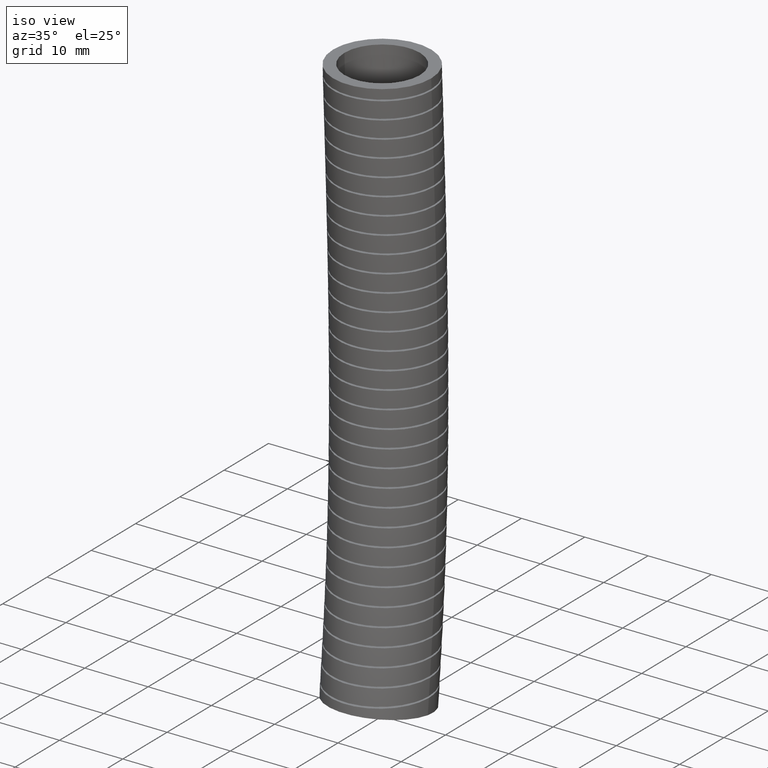
[diagram: clean part render]
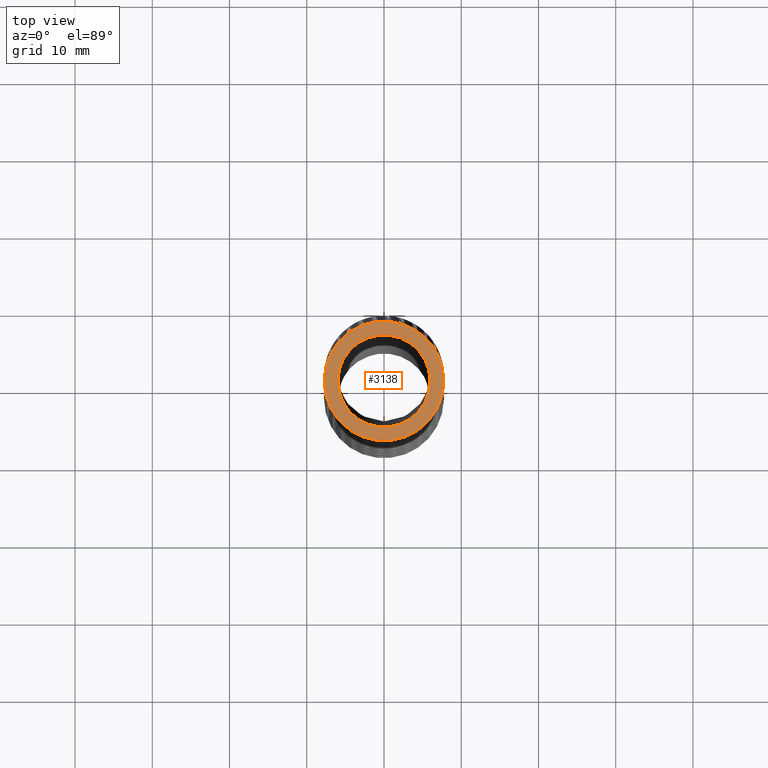
[diagram: tour spotlight — one face highlighted and labeled with its STEP entity id]
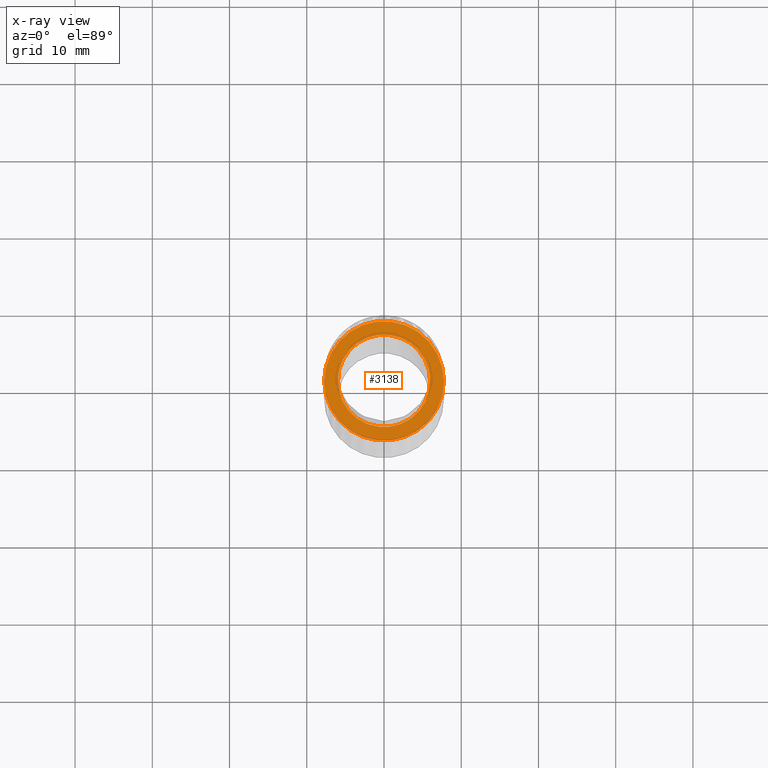
[diagram: x-ray of the same camera — body ghosted, this tour face saturated]
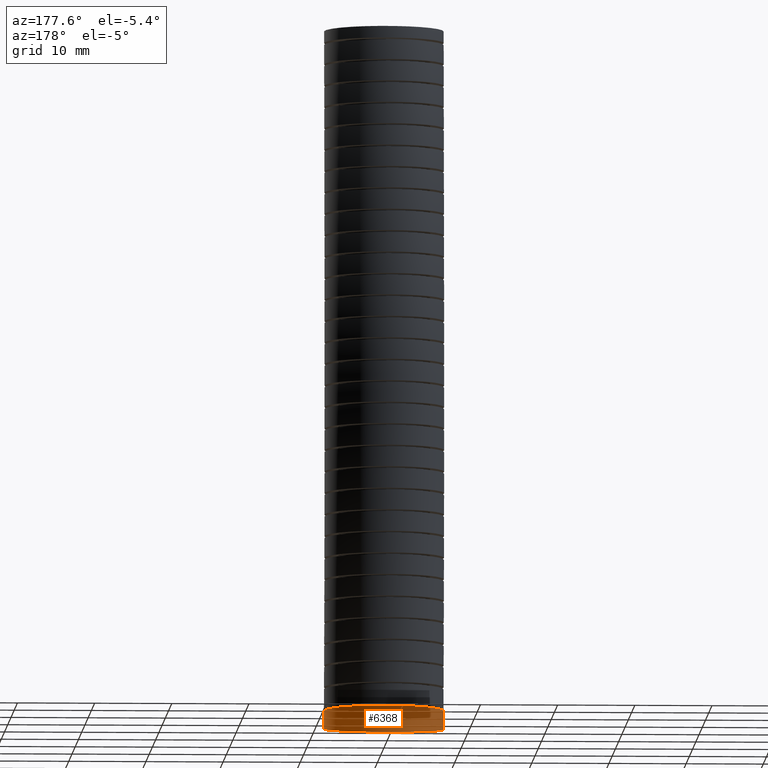
[diagram: tour spotlight — one face highlighted and labeled with its STEP entity id]
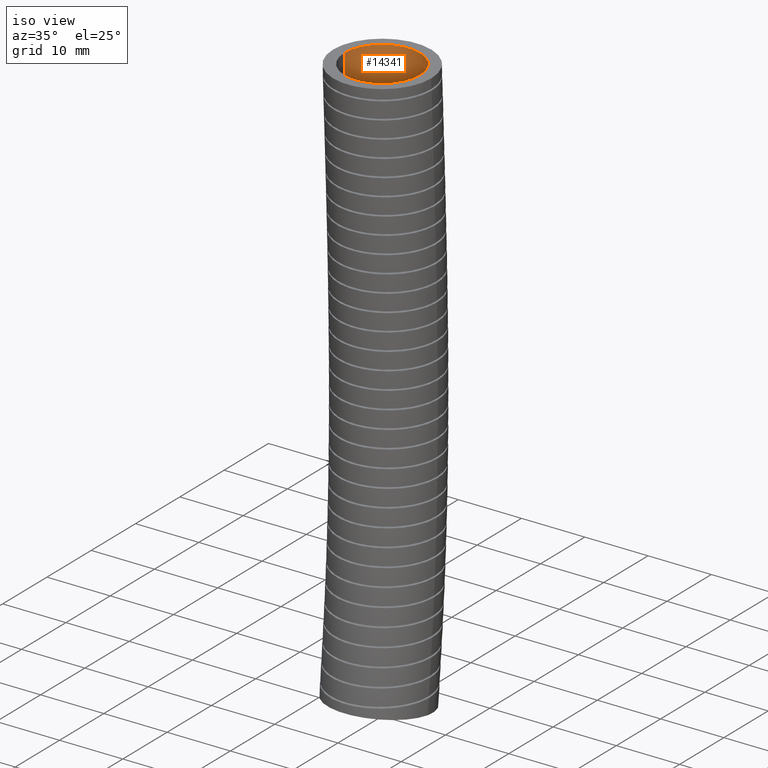
[diagram: tour spotlight — one face highlighted and labeled with its STEP entity id]
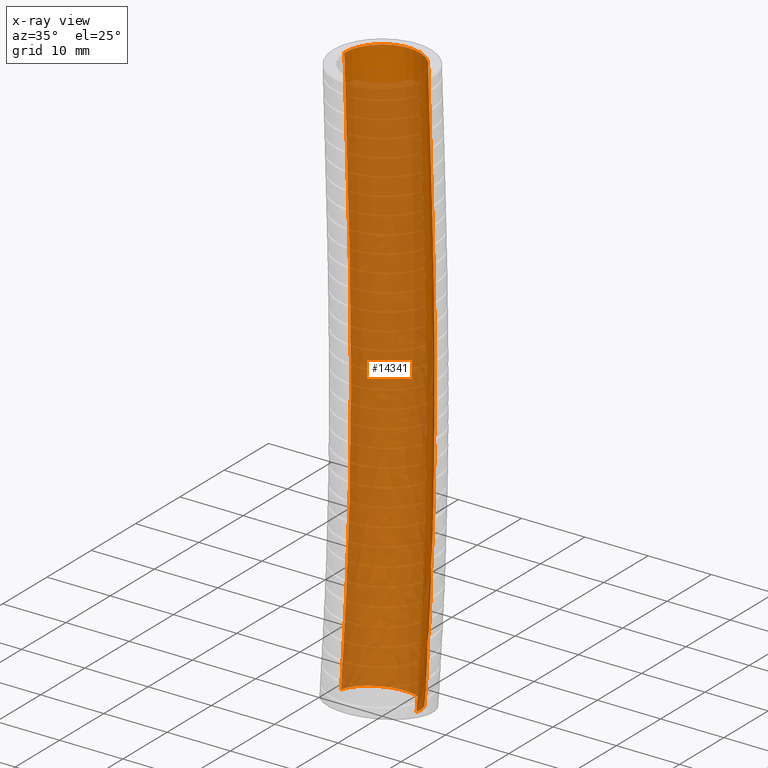
[diagram: x-ray of the same camera — body ghosted, this tour face saturated]
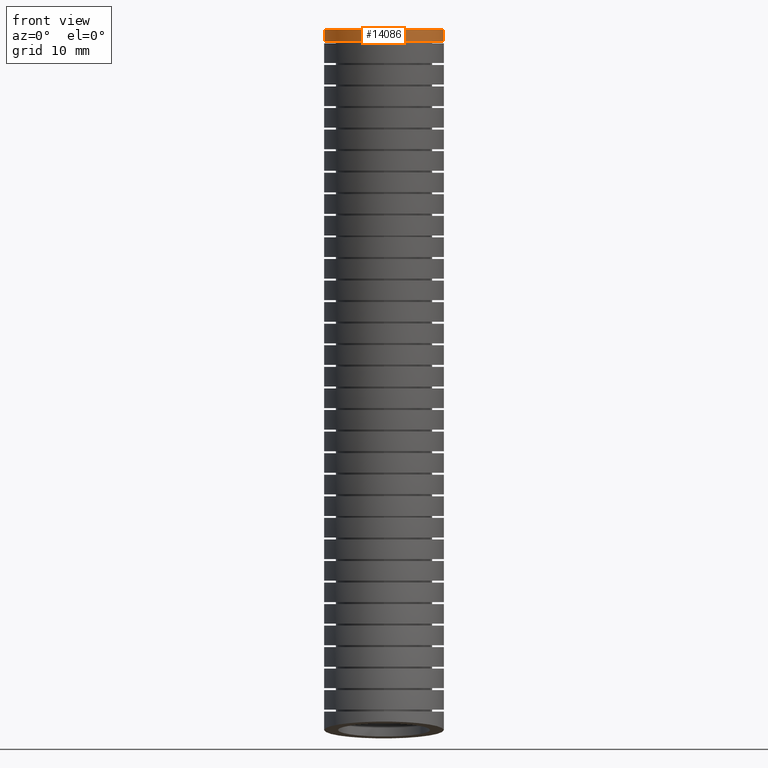
[diagram: tour spotlight — one face highlighted and labeled with its STEP entity id]
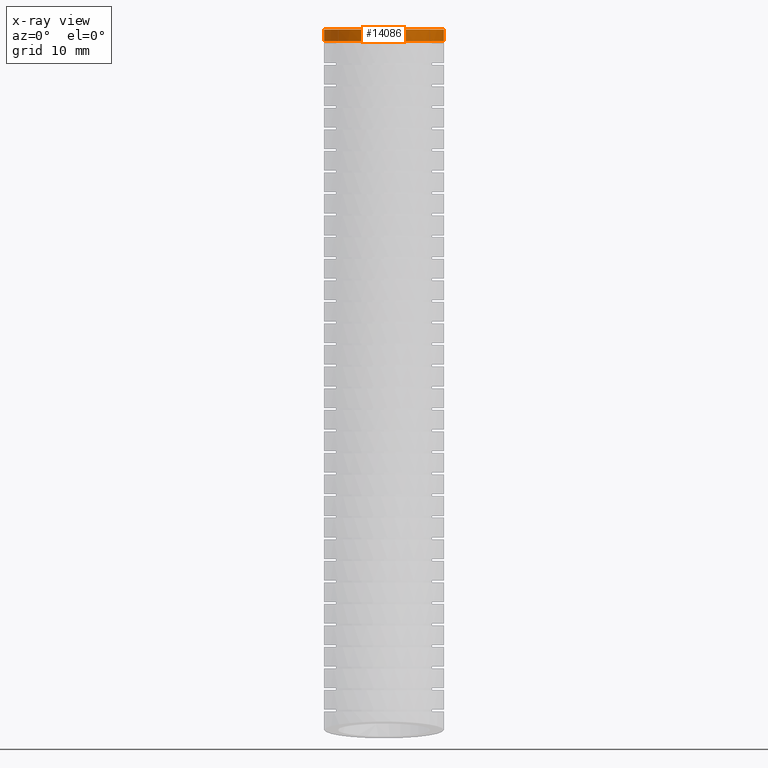
[diagram: x-ray of the same camera — body ghosted, this tour face saturated]
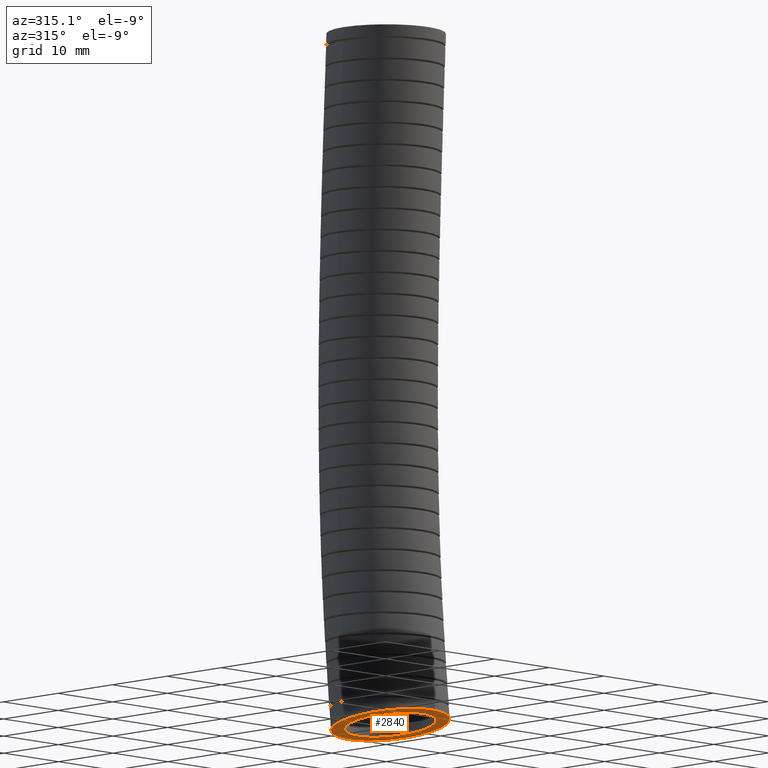
[diagram: tour spotlight — one face highlighted and labeled with its STEP entity id]
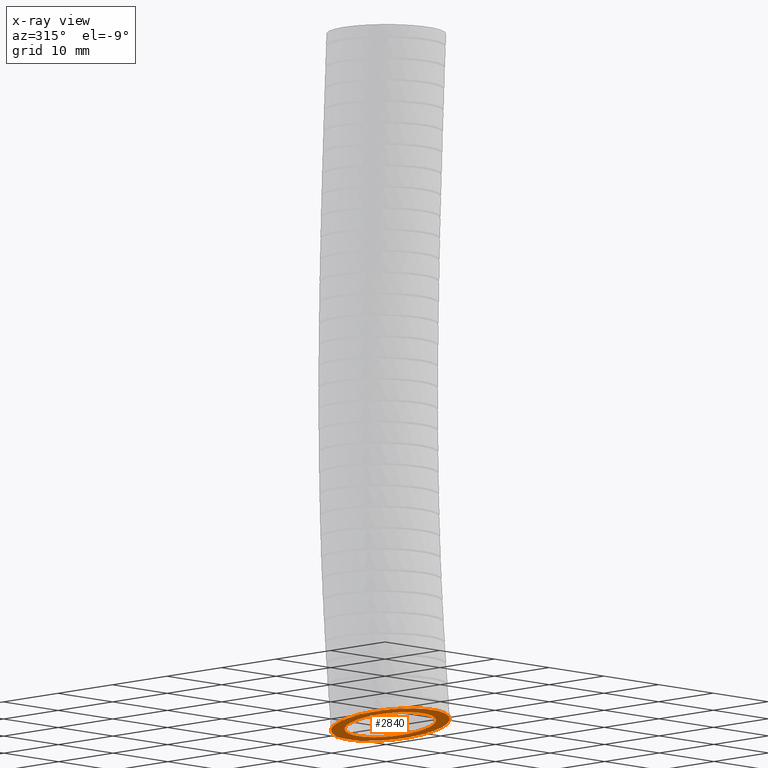
[diagram: x-ray of the same camera — body ghosted, this tour face saturated]
A machine part: a face-by-face anatomy tour. The part has 198 B-rep faces; the first image is the clean iso view, then the 5 largest visible faces are spotlighted one at a time (largest first), each with its STEP entity span.

Face 1 — top view, entity #3138. An x-ray twin of the same camera follows (body ghosted, this face saturated) — the face is partly hidden behind the body. In plain terms, the highlighted planar face has unit normal (0, 0, 1).
Definition (entity closure, byte-faithful):
#1577 = AXIS2_PLACEMENT_3D ( 'NONE', #1585, #1658, #1657 ) ;
#1578 = CIRCLE ( 'NONE', #1577, 0.2349999999999999900 ) ;
#1585 = CARTESIAN_POINT ( 'NONE',  ( 0.0000000000000000000, 0.0000000000000000000, 0.0000000000000000000 ) ) ;
#1657 = DIRECTION ( 'NONE',  ( 1.000000000000000000, 0.0000000000000000000, 0.0000000000000000000 ) ) ;
#1658 = DIRECTION ( 'NONE',  ( 0.0000000000000000000, 0.0000000000000000000, 1.000000000000000000 ) ) ;
#2020 = CARTESIAN_POINT ( 'NONE',  ( 0.2349999999999999900, 0.0000000000000000000, 0.0000000000000000000 ) ) ;
#2373 = CARTESIAN_POINT ( 'NONE',  ( 0.3050000000000000500, 0.0000000000000000000, 0.0000000000000000000 ) ) ;
#2414 = CARTESIAN_POINT ( 'NONE',  ( -0.2349999999999999900, 2.877919977996279800E-017, 0.0000000000000000000 ) ) ;
#2923 = DIRECTION ( 'NONE',  ( 1.000000000000000000, 0.0000000000000000000, 0.0000000000000000000 ) ) ;
#2924 = DIRECTION ( 'NONE',  ( 0.0000000000000000000, 0.0000000000000000000, 1.000000000000000000 ) ) ;
#2925 = CARTESIAN_POINT ( 'NONE',  ( 0.0000000000000000000, 0.0000000000000000000, 0.0000000000000000000 ) ) ;
#2926 = AXIS2_PLACEMENT_3D ( 'NONE', #2925, #2924, #2923 ) ;
#2927 = CIRCLE ( 'NONE', #2926, 0.3050000000000000500 ) ;
#2933 = CARTESIAN_POINT ( 'NONE',  ( -0.3050000000000000500, 3.735172737399427600E-017, 0.0000000000000000000 ) ) ;
#2990 = EDGE_CURVE ( 'NONE', #14079, #14364, #7224, .T. ) ;
#3029 = EDGE_LOOP ( 'NONE', ( #3117, #3118 ) ) ;
#3117 = ORIENTED_EDGE ( 'NONE', *, *, #2990, .T. ) ;
#3118 = ORIENTED_EDGE ( 'NONE', *, *, #14365, .T. ) ;
#3134 = ORIENTED_EDGE ( 'NONE', *, *, #13766, .F. ) ;
#3135 = EDGE_LOOP ( 'NONE', ( #3134, #3137 ) ) ;
#3136 = EDGE_CURVE ( 'NONE', #14087, #13815, #7290, .T. ) ;
#3137 = ORIENTED_EDGE ( 'NONE', *, *, #3136, .F. ) ;
#3138 = ADVANCED_FACE ( 'NONE', ( #7286, #7352 ), #7376, .T. ) ;
#7220 = DIRECTION ( 'NONE',  ( 1.000000000000000000, 0.0000000000000000000, 0.0000000000000000000 ) ) ;
#7221 = DIRECTION ( 'NONE',  ( 0.0000000000000000000, 0.0000000000000000000, 1.000000000000000000 ) ) ;
#7222 = CARTESIAN_POINT ( 'NONE',  ( 0.0000000000000000000, 0.0000000000000000000, 0.0000000000000000000 ) ) ;
#7223 = AXIS2_PLACEMENT_3D ( 'NONE', #7222, #7221, #7220 ) ;
#7224 = CIRCLE ( 'NONE', #7223, 0.3050000000000000500 ) ;
#7286 = FACE_BOUND ( 'NONE', #3135, .T. ) ;
#7287 = DIRECTION ( 'NONE',  ( 1.000000000000000000, 0.0000000000000000000, 0.0000000000000000000 ) ) ;
#7288 = DIRECTION ( 'NONE',  ( 0.0000000000000000000, 0.0000000000000000000, 1.000000000000000000 ) ) ;
#7289 = AXIS2_PLACEMENT_3D ( 'NONE', #7336, #7288, #7287 ) ;
#7290 = CIRCLE ( 'NONE', #7289, 0.2349999999999999900 ) ;
#7336 = CARTESIAN_POINT ( 'NONE',  ( 0.0000000000000000000, 0.0000000000000000000, 0.0000000000000000000 ) ) ;
#7352 = FACE_OUTER_BOUND ( 'NONE', #3029, .T. ) ;
#7372 = DIRECTION ( 'NONE',  ( 1.000000000000000000, 0.0000000000000000000, 0.0000000000000000000 ) ) ;
#7373 = DIRECTION ( 'NONE',  ( 0.0000000000000000000, 0.0000000000000000000, 1.000000000000000000 ) ) ;
#7374 = CARTESIAN_POINT ( 'NONE',  ( 0.0000000000000000000, 0.0000000000000000000, 0.0000000000000000000 ) ) ;
#7375 = AXIS2_PLACEMENT_3D ( 'NONE', #7374, #7373, #7372 ) ;
#7376 = PLANE ( 'NONE',  #7375 ) ;
#13766 = EDGE_CURVE ( 'NONE', #13815, #14087, #1578, .T. ) ;
#13815 = VERTEX_POINT ( 'NONE', #2020 ) ;
#14079 = VERTEX_POINT ( 'NONE', #2373 ) ;
#14087 = VERTEX_POINT ( 'NONE', #2414 ) ;
#14364 = VERTEX_POINT ( 'NONE', #2933 ) ;
#14365 = EDGE_CURVE ( 'NONE', #14364, #14079, #2927, .T. ) ;

Face 2 — auxiliary view, entity #6368. In plain terms, the highlighted face is a freeform B-spline surface patch.
Definition (entity closure, byte-faithful):
#6314 = EDGE_CURVE ( 'NONE', #6394, #6315, #8477, .T. ) ;
#6315 = VERTEX_POINT ( 'NONE', #8479 ) ;
#6318 = VERTEX_POINT ( 'NONE', #8518 ) ;
#6368 = ADVANCED_FACE ( 'NONE', ( #9159 ), #9205, .T. ) ;
#6369 = EDGE_LOOP ( 'NONE', ( #6370, #6371, #6373, #6428 ) ) ;
#6370 = ORIENTED_EDGE ( 'NONE', *, *, #6314, .F. ) ;
#6371 = ORIENTED_EDGE ( 'NONE', *, *, #6372, .T. ) ;
#6372 = EDGE_CURVE ( 'NONE', #6394, #6393, #9217, .T. ) ;
#6373 = ORIENTED_EDGE ( 'NONE', *, *, #6374, .T. ) ;
#6374 = EDGE_CURVE ( 'NONE', #6393, #6318, #9237, .T. ) ;
#6393 = VERTEX_POINT ( 'NONE', #9479 ) ;
#6394 = VERTEX_POINT ( 'NONE', #9477 ) ;
#6428 = ORIENTED_EDGE ( 'NONE', *, *, #6429, .T. ) ;
#6429 = EDGE_CURVE ( 'NONE', #6318, #6315, #10084, .T. ) ;
#8473 = CARTESIAN_POINT ( 'NONE',  ( -0.3050000000000000500, -0.02999999999999988400, -3.569999999999999000 ) ) ;
#8474 = CARTESIAN_POINT ( 'NONE',  ( -0.3049999999999999900, -0.02702555163498188100, -3.538791739647350700 ) ) ;
#8475 = CARTESIAN_POINT ( 'NONE',  ( -0.3049999999999999900, -0.02405110326996379500, -3.507583479294702900 ) ) ;
#8476 = CARTESIAN_POINT ( 'NONE',  ( -0.3049999999999999900, -0.02109577158603464700, -3.476374445932213200 ) ) ;
#8477 = B_SPLINE_CURVE_WITH_KNOTS ( 'NONE', 3,
 ( #8476, #8475, #8474, #8473 ),
 .UNSPECIFIED., .F., .F.,
 ( 4, 4 ),
 ( 0.9736824416181557600, 1.000000000000000000 ),
 .UNSPECIFIED. ) ;
#8479 = CARTESIAN_POINT ( 'NONE',  ( -0.3050000000000000500, -0.02999999999999988400, -3.569999999999999000 ) ) ;
#8518 = CARTESIAN_POINT ( 'NONE',  ( 0.3049999999999999900, -0.02999999999999998800, -3.569999999999999000 ) ) ;
#8679 = CARTESIAN_POINT ( 'NONE',  ( -0.3049999999999999400, 0.6875905811525234700, -1.687708987936889400 ) ) ;
#8681 = CARTESIAN_POINT ( 'NONE',  ( -0.3049999999999999400, 0.6410401296320996600, -0.6751683643642422100 ) ) ;
#8943 = CARTESIAN_POINT ( 'NONE',  ( -0.3049999999999998800, 0.5739397472009051300, -3.655771683852579600 ) ) ;
#8944 = CARTESIAN_POINT ( 'NONE',  ( -0.3049999999999998800, 0.5927977391964373000, -3.458550284486119800 ) ) ;
#8945 = CARTESIAN_POINT ( 'NONE',  ( -0.3049999999999999400, 0.6446003076157562600, -2.916786610132277200 ) ) ;
#9159 = FACE_OUTER_BOUND ( 'NONE', #6369, .T. ) ;
#9178 = CARTESIAN_POINT ( 'NONE',  ( -0.3049999999999999400, 0.6100000000000001000, 0.0000000000000000000 ) ) ;
#9179 = CARTESIAN_POINT ( 'NONE',  ( -0.3049999999999999900, -0.02999999999999996100, -3.569999999999999400 ) ) ;
#9180 = CARTESIAN_POINT ( 'NONE',  ( -0.3049999999999999400, -0.01189670328115248300, -3.380058092153300100 ) ) ;
#9181 = CARTESIAN_POINT ( 'NONE',  ( -0.3049999999999999900, 0.03783273064349428100, -2.858291051460112500 ) ) ;
#9182 = CARTESIAN_POINT ( 'NONE',  ( -0.3049999999999999900, 0.07694042471324441500, -1.669468061939300500 ) ) ;
#9183 = CARTESIAN_POINT ( 'NONE',  ( -0.3050000000000000500, 0.03078003440073754200, -0.6678710777714059700 ) ) ;
#9184 = CARTESIAN_POINT ( 'NONE',  ( -0.3050000000000000500, 3.735172737399427600E-017, 0.0000000000000000000 ) ) ;
#9185 = CARTESIAN_POINT ( 'NONE',  ( -0.3050000000000000500, -0.6339397472009050700, -3.484228316147418800 ) ) ;
#9186 = CARTESIAN_POINT ( 'NONE',  ( -0.3050000000000000500, -0.6165911457587421900, -3.301565899820480900 ) ) ;
#9187 = CARTESIAN_POINT ( 'NONE',  ( -0.3050000000000000500, -0.5689348463287677800, -2.799795492787948300 ) ) ;
#9188 = CARTESIAN_POINT ( 'NONE',  ( -0.3050000000000001000, -0.5337097317260344200, -1.651227135941712300 ) ) ;
#9189 = CARTESIAN_POINT ( 'NONE',  ( -0.3050000000000001600, -0.5794800608306244200, -0.6605737911785694000 ) ) ;
#9190 = CARTESIAN_POINT ( 'NONE',  ( -0.3050000000000001000, -0.6100000000000001000, 0.0000000000000000000 ) ) ;
#9191 = CARTESIAN_POINT ( 'NONE',  ( 0.3049999999999999400, -0.6339397472009050700, -3.484228316147418800 ) ) ;
#9192 = CARTESIAN_POINT ( 'NONE',  ( 0.3049999999999999400, -0.6165911457587421900, -3.301565899820480900 ) ) ;
#9193 = CARTESIAN_POINT ( 'NONE',  ( 0.3049999999999999400, -0.5689348463287677800, -2.799795492787948300 ) ) ;
#9194 = CARTESIAN_POINT ( 'NONE',  ( 0.3050000000000000500, -0.5337097317260344200, -1.651227135941712300 ) ) ;
#9195 = CARTESIAN_POINT ( 'NONE',  ( 0.3050000000000000500, -0.5794800608306244200, -0.6605737911785694000 ) ) ;
#9196 = CARTESIAN_POINT ( 'NONE',  ( 0.3050000000000000500, -0.6100000000000001000, 0.0000000000000000000 ) ) ;
#9197 = CARTESIAN_POINT ( 'NONE',  ( 0.3049999999999999900, -0.02999999999999999900, -3.569999999999999400 ) ) ;
#9198 = CARTESIAN_POINT ( 'NONE',  ( 0.3049999999999999400, -0.01189670328115252300, -3.380058092153300100 ) ) ;
#9199 = CARTESIAN_POINT ( 'NONE',  ( 0.3049999999999999900, 0.03783273064349424600, -2.858291051460112500 ) ) ;
#9200 = CARTESIAN_POINT ( 'NONE',  ( 0.3049999999999999900, 0.07694042471324438700, -1.669468061939300500 ) ) ;
#9201 = CARTESIAN_POINT ( 'NONE',  ( 0.3050000000000000500, 0.03078003440073750300, -0.6678710777714059700 ) ) ;
#9202 = CARTESIAN_POINT ( 'NONE',  ( 0.3050000000000000500, 0.0000000000000000000, 0.0000000000000000000 ) ) ;
#9205 =( BOUNDED_SURFACE ( )  B_SPLINE_SURFACE ( 3, 3, ( 
 ( #9202, #9201, #9200, #9199, #9198, #9197 ),
 ( #9196, #9195, #9194, #9193, #9192, #9191 ),
 ( #9190, #9189, #9188, #9187, #9186, #9185 ),
 ( #9184, #9183, #9182, #9181, #9180, #9179 ),
 ( #9178, #8681, #8679, #8945, #8944, #8943 ),
 ( #9229, #9228, #9227, #9226, #9225, #9224 ),
 ( #9223, #9222, #9221, #9220, #9219, #9218 ) ),
 .UNSPECIFIED., .F., .F., .F. ) 
 B_SPLINE_SURFACE_WITH_KNOTS ( ( 4, 3, 4 ),
 ( 4, 1, 1, 4 ),
 ( 0.0000000000000000000, 0.5000000000000000000, 1.000000000000000000 ),
 ( 0.0000000000000000000, 0.5599999999999999400, 0.8398242262648183400, 1.000000000000000000 ),
 .UNSPECIFIED. ) 
 GEOMETRIC_REPRESENTATION_ITEM ( )  RATIONAL_B_SPLINE_SURFACE ( (
 ( 1.000000000000000000, 1.000000000000000000, 1.000000000000000200, 1.000000000000000000, 1.000000000000000000, 1.000000000000000000),
 ( 0.3333333333333333100, 0.3333333333333333100, 0.3333333333333333100, 0.3333333333333333100, 0.3333333333333333100, 0.3333333333333333100),
 ( 0.3333333333333333100, 0.3333333333333333100, 0.3333333333333333100, 0.3333333333333333100, 0.3333333333333333100, 0.3333333333333333100),
 ( 1.000000000000000000, 1.000000000000000000, 1.000000000000000200, 1.000000000000000000, 1.000000000000000000, 1.000000000000000000),
 ( 0.3333333333333333100, 0.3333333333333333100, 0.3333333333333333100, 0.3333333333333333100, 0.3333333333333333100, 0.3333333333333333100),
 ( 0.3333333333333333100, 0.3333333333333333100, 0.3333333333333333100, 0.3333333333333333100, 0.3333333333333333100, 0.3333333333333333100),
 ( 1.000000000000000000, 1.000000000000000000, 1.000000000000000200, 1.000000000000000000, 1.000000000000000000, 1.000000000000000000) ) ) 
 REPRESENTATION_ITEM ( '' )  SURFACE ( )  );
#9206 = CARTESIAN_POINT ( 'NONE',  ( -0.2426518468275084300, 0.1654121198948820000, -3.476374445932214600 ) ) ;
#9207 = CARTESIAN_POINT ( 'NONE',  ( -0.2593568923536363500, 0.1402647515580999500, -3.476374445932213700 ) ) ;
#9208 = CARTESIAN_POINT ( 'NONE',  ( -0.2645128258292841500, 0.1316001376003141900, -3.476374445932213700 ) ) ;
#9209 = CARTESIAN_POINT ( 'NONE',  ( -0.2738762013166981000, 0.1139610564097153500, -3.476374445932213700 ) ) ;
#9210 = CARTESIAN_POINT ( 'NONE',  ( -0.2823393577397168600, 0.09594075075247397700, -3.476374445932211500 ) ) ;
#9211 = CARTESIAN_POINT ( 'NONE',  ( -0.2890237467556642800, 0.07716717327189326300, -3.476374445932214600 ) ) ;
#9212 = CARTESIAN_POINT ( 'NONE',  ( -0.2948038995469377500, 0.05801067013898618400, -3.476374445932214600 ) ) ;
#9213 = CARTESIAN_POINT ( 'NONE',  ( -0.2972504772278297100, 0.04818580285829805000, -3.476374445932212300 ) ) ;
#9214 = CARTESIAN_POINT ( 'NONE',  ( -0.3030775547405451000, 0.01865209320129323700, -3.476374445932213200 ) ) ;
#9215 = CARTESIAN_POINT ( 'NONE',  ( -0.3049999999999998800, -0.001161080816822641300, -3.476374445932211500 ) ) ;
#9216 = CARTESIAN_POINT ( 'NONE',  ( -0.3049999999999999900, -0.02109577158603464700, -3.476374445932213200 ) ) ;
#9217 = B_SPLINE_CURVE_WITH_KNOTS ( 'NONE', 3,
 ( #9216, #9215, #9214, #9213, #9212, #9211, #9210, #9209, #9208, #9207, #9206, #9273, #9272, #9271, #9270, #9269, #9268, #9267, #9266, #9265, #9264, #9263, #9262, #9261, #9260, #9259, #9258, #9257, #9256, #9255, #9254, #9253, #9252, #9251, #9250, #9249, #9248, #9247, #9246, #9245, #9244, #9243, #9242, #9241, #9240 ),
 .UNSPECIFIED., .F., .F.,
 ( 4, 2, 2, 1, 2, 2, 2, 2, 2, 2, 2, 2, 2, 2, 2, 2, 2, 2, 2, 2, 2, 2, 4 ),
 ( 0.02426157063987331000, 0.02577756018622028000, 0.02653555495939376500, 0.02729354973256725000, 0.02805154450574073500, 0.02880953927891422000, 0.03032552882526119400, 0.03108352359843467900, 0.03184151837160816700, 0.03335750791795513700, 0.03411550269112861900, 0.03487349746430210700, 0.03638948701064907700, 0.03790547655699605400, 0.03866347133016953500, 0.03942146610334301700, 0.04093745564968999400, 0.04245344519603695700, 0.04396943474238392700, 0.04472742951555741500, 0.04548542428873089700, 0.04700141383507786700, 0.04851740338142483700 ),
 .UNSPECIFIED. ) ;
#9218 = CARTESIAN_POINT ( 'NONE',  ( 0.3049999999999999900, -0.02999999999999999900, -3.569999999999999400 ) ) ;
#9219 = CARTESIAN_POINT ( 'NONE',  ( 0.3049999999999999400, -0.01189670328115252300, -3.380058092153300100 ) ) ;
#9220 = CARTESIAN_POINT ( 'NONE',  ( 0.3049999999999999900, 0.03783273064349424600, -2.858291051460112500 ) ) ;
#9221 = CARTESIAN_POINT ( 'NONE',  ( 0.3049999999999999900, 0.07694042471324438700, -1.669468061939300500 ) ) ;
#9222 = CARTESIAN_POINT ( 'NONE',  ( 0.3050000000000000500, 0.03078003440073750300, -0.6678710777714059700 ) ) ;
#9223 = CARTESIAN_POINT ( 'NONE',  ( 0.3050000000000000500, 0.0000000000000000000, 0.0000000000000000000 ) ) ;
#9224 = CARTESIAN_POINT ( 'NONE',  ( 0.3049999999999999400, 0.5739397472009051300, -3.655771683852579600 ) ) ;
#9225 = CARTESIAN_POINT ( 'NONE',  ( 0.3049999999999999400, 0.5927977391964371900, -3.458550284486119800 ) ) ;
#9226 = CARTESIAN_POINT ( 'NONE',  ( 0.3049999999999999400, 0.6446003076157559300, -2.916786610132277200 ) ) ;
#9227 = CARTESIAN_POINT ( 'NONE',  ( 0.3050000000000000500, 0.6875905811525232500, -1.687708987936889400 ) ) ;
#9228 = CARTESIAN_POINT ( 'NONE',  ( 0.3050000000000000500, 0.6410401296320993300, -0.6751683643642422100 ) ) ;
#9229 = CARTESIAN_POINT ( 'NONE',  ( 0.3050000000000000500, 0.6100000000000001000, 0.0000000000000000000 ) ) ;
#9230 = CARTESIAN_POINT ( 'NONE',  ( 0.3049999999999999900, -0.02702555163498192700, -3.538791739647351600 ) ) ;
#9231 = CARTESIAN_POINT ( 'NONE',  ( 0.3049999999999999900, -0.02405110326996385400, -3.507583479294703400 ) ) ;
#9232 = CARTESIAN_POINT ( 'NONE',  ( 0.3049999999999999900, -0.02109577158603487600, -3.476374445932214600 ) ) ;
#9237 = B_SPLINE_CURVE_WITH_KNOTS ( 'NONE', 3,
 ( #9232, #9231, #9230, #9287 ),
 .UNSPECIFIED., .F., .F.,
 ( 4, 4 ),
 ( 0.9736824416181558700, 1.000000000000000000 ),
 .UNSPECIFIED. ) ;
#9240 = CARTESIAN_POINT ( 'NONE',  ( 0.3049999999999999900, -0.02109577158603487600, -3.476374445932214600 ) ) ;
#9241 = CARTESIAN_POINT ( 'NONE',  ( 0.3050000000000000500, -0.0009148400475572332100, -3.476374445932213700 ) ) ;
#9242 = CARTESIAN_POINT ( 'NONE',  ( 0.3030299491104520600, 0.01905823858575085600, -3.476374445932213200 ) ) ;
#9243 = CARTESIAN_POINT ( 'NONE',  ( 0.2951644365418818500, 0.05858966352166405200, -3.476374445932212800 ) ) ;
#9244 = CARTESIAN_POINT ( 'NONE',  ( 0.2893328539429714800, 0.07775664708961217700, -3.476374445932214600 ) ) ;
#9245 = CARTESIAN_POINT ( 'NONE',  ( 0.2779319138502459600, 0.1053410032524750600, -3.476374445932214600 ) ) ;
#9246 = CARTESIAN_POINT ( 'NONE',  ( 0.2736827038288522400, 0.1143572514587066500, -3.476374445932213700 ) ) ;
#9247 = CARTESIAN_POINT ( 'NONE',  ( 0.2642692470646335100, 0.1320258153835722200, -3.476374445932213700 ) ) ;
#9248 = CARTESIAN_POINT ( 'NONE',  ( 0.2590732785518460300, 0.1407207036729394600, -3.476374445932211500 ) ) ;
#9249 = CARTESIAN_POINT ( 'NONE',  ( 0.2423839316937300400, 0.1657551832203333600, -3.476374445932212300 ) ) ;
#9250 = CARTESIAN_POINT ( 'NONE',  ( 0.2297710913146969500, 0.1811545979576871800, -3.476374445932211500 ) ) ;
#9251 = CARTESIAN_POINT ( 'NONE',  ( 0.2016168419019302400, 0.2094117025612126900, -3.476374445932212800 ) ) ;
#9252 = CARTESIAN_POINT ( 'NONE',  ( 0.1859097923447965400, 0.2223438056541825200, -3.476374445932215000 ) ) ;
#9253 = CARTESIAN_POINT ( 'NONE',  ( 0.1527642266825258200, 0.2445450874388334100, -3.476374445932215900 ) ) ;
#9254 = CARTESIAN_POINT ( 'NONE',  ( 0.1352265973407537900, 0.2539588339355665100, -3.476374445932215000 ) ) ;
#9255 = CARTESIAN_POINT ( 'NONE',  ( 0.1074467188857348400, 0.2655033669397288100, -3.476374445932214600 ) ) ;
#9256 = CARTESIAN_POINT ( 'NONE',  ( 0.09791016381083664200, 0.2689223977681597400, -3.476374445932213700 ) ) ;
#9257 = CARTESIAN_POINT ( 'NONE',  ( 0.07875127283547374300, 0.2747391000196860400, -3.476374445932213700 ) ) ;
#9258 = CARTESIAN_POINT ( 'NONE',  ( 0.06908178766387032500, 0.2771596199831856100, -3.476374445932213700 ) ) ;
#9259 = CARTESIAN_POINT ( 'NONE',  ( 0.03980808003739494400, 0.2829840552605342700, -3.476374445932213700 ) ) ;
#9260 = CARTESIAN_POINT ( 'NONE',  ( 0.01985093654244768400, 0.2849645245903918400, -3.476374445932213700 ) ) ;
#9261 = CARTESIAN_POINT ( 'NONE',  ( -0.02041799136586431100, 0.2849269636159074100, -3.476374445932213200 ) ) ;
#9262 = CARTESIAN_POINT ( 'NONE',  ( -0.04024245235002691500, 0.2829274678706711300, -3.476374445932210600 ) ) ;
#9263 = CARTESIAN_POINT ( 'NONE',  ( -0.06952947159544557700, 0.2770551142025790000, -3.476374445932210600 ) ) ;
#9264 = CARTESIAN_POINT ( 'NONE',  ( -0.07921631755046307200, 0.2746153072508885100, -3.476374445932210600 ) ) ;
#9265 = CARTESIAN_POINT ( 'NONE',  ( -0.09843491861494692300, 0.2687447647632924500, -3.476374445932210100 ) ) ;
#9266 = CARTESIAN_POINT ( 'NONE',  ( -0.1079458789001472000, 0.2653133046477857400, -3.476374445932212800 ) ) ;
#9267 = CARTESIAN_POINT ( 'NONE',  ( -0.1356163601253021500, 0.2537607699513487700, -3.476374445932212800 ) ) ;
#9268 = CARTESIAN_POINT ( 'NONE',  ( -0.1531349119665035600, 0.2443333773988463900, -3.476374445932217200 ) ) ;
#9269 = CARTESIAN_POINT ( 'NONE',  ( -0.1780223588191912900, 0.2276079584818870800, -3.476374445932216800 ) ) ;
#9270 = CARTESIAN_POINT ( 'NONE',  ( -0.1861269060385922200, 0.2215626226815861900, -3.476374445932212800 ) ) ;
#9271 = CARTESIAN_POINT ( 'NONE',  ( -0.2016181930399195400, 0.2087636691072085300, -3.476374445932213700 ) ) ;
#9272 = CARTESIAN_POINT ( 'NONE',  ( -0.2089942735498231100, 0.2020276114833859100, -3.476374445932213700 ) ) ;
#9273 = CARTESIAN_POINT ( 'NONE',  ( -0.2300447960512601000, 0.1808379020910536000, -3.476374445932213200 ) ) ;
#9287 = CARTESIAN_POINT ( 'NONE',  ( 0.3049999999999999900, -0.02999999999999998800, -3.569999999999999000 ) ) ;
#9477 = CARTESIAN_POINT ( 'NONE',  ( -0.3049999999999999900, -0.02109577158603464700, -3.476374445932213200 ) ) ;
#9479 = CARTESIAN_POINT ( 'NONE',  ( 0.3049999999999999900, -0.02109577158603487600, -3.476374445932214600 ) ) ;
#10047 = CARTESIAN_POINT ( 'NONE',  ( 0.0000000000000000000, -0.02999999999999998800, -3.569999999999999000 ) ) ;
#10081 = DIRECTION ( 'NONE',  ( 1.000000000000000000, 0.0000000000000000000, 0.0000000000000000000 ) ) ;
#10082 = DIRECTION ( 'NONE',  ( 0.0000000000000000000, 0.1406093177911149100, 0.9900651593457461300 ) ) ;
#10083 = AXIS2_PLACEMENT_3D ( 'NONE', #10047, #10082, #10081 ) ;
#10084 = CIRCLE ( 'NONE', #10083, 0.3049999999999999900 ) ;

Face 3 — iso view, entity #14341. An x-ray twin of the same camera follows (body ghosted, this face saturated) — the face is partly hidden behind the body. In plain terms, the highlighted face is a freeform B-spline surface patch.
Definition (entity closure, byte-faithful):
#1577 = AXIS2_PLACEMENT_3D ( 'NONE', #1585, #1658, #1657 ) ;
#1578 = CIRCLE ( 'NONE', #1577, 0.2349999999999999900 ) ;
#1585 = CARTESIAN_POINT ( 'NONE',  ( 0.0000000000000000000, 0.0000000000000000000, 0.0000000000000000000 ) ) ;
#1657 = DIRECTION ( 'NONE',  ( 1.000000000000000000, 0.0000000000000000000, 0.0000000000000000000 ) ) ;
#1658 = DIRECTION ( 'NONE',  ( 0.0000000000000000000, 0.0000000000000000000, 1.000000000000000000 ) ) ;
#1677 = CARTESIAN_POINT ( 'NONE',  ( -0.2350000000000000100, -0.02999999999999989500, -3.569999999999999000 ) ) ;
#1678 = CARTESIAN_POINT ( 'NONE',  ( -0.2349999999999999600, -0.01189670328115249200, -3.380058092153300100 ) ) ;
#1679 = CARTESIAN_POINT ( 'NONE',  ( -0.2349999999999999600, 0.03783273064349428100, -2.858291051460112500 ) ) ;
#1680 = CARTESIAN_POINT ( 'NONE',  ( -0.2349999999999999300, 0.07694042471324441500, -1.669468061939300800 ) ) ;
#1681 = CARTESIAN_POINT ( 'NONE',  ( -0.2350000000000000100, 0.03078003440073753500, -0.6678710777714059700 ) ) ;
#1682 = CARTESIAN_POINT ( 'NONE',  ( -0.2349999999999999900, 2.877919977996279800E-017, 0.0000000000000000000 ) ) ;
#1684 = B_SPLINE_CURVE_WITH_KNOTS ( 'NONE', 3,
 ( #1682, #1681, #1680, #1679, #1678, #1677 ),
 .UNSPECIFIED., .F., .F.,
 ( 4, 1, 1, 4 ),
 ( 0.0000000000000000000, 0.5599999999999999400, 0.8398242262648183400, 1.000000000000000000 ),
 .UNSPECIFIED. ) ;
#2020 = CARTESIAN_POINT ( 'NONE',  ( 0.2349999999999999900, 0.0000000000000000000, 0.0000000000000000000 ) ) ;
#2414 = CARTESIAN_POINT ( 'NONE',  ( -0.2349999999999999900, 2.877919977996279800E-017, 0.0000000000000000000 ) ) ;
#2466 = DIRECTION ( 'NONE',  ( 1.000000000000000000, 0.0000000000000000000, 0.0000000000000000000 ) ) ;
#2467 = DIRECTION ( 'NONE',  ( 0.0000000000000000000, 0.1406093177911149100, 0.9900651593457461300 ) ) ;
#2468 = AXIS2_PLACEMENT_3D ( 'NONE', #2475, #2467, #2466 ) ;
#2469 = CIRCLE ( 'NONE', #2468, 0.2349999999999999600 ) ;
#2475 = CARTESIAN_POINT ( 'NONE',  ( 0.0000000000000000000, -0.02999999999999998800, -3.569999999999999000 ) ) ;
#2496 = CARTESIAN_POINT ( 'NONE',  ( 0.2349999999999999600, -0.02999999999999998800, -3.569999999999999000 ) ) ;
#2524 = B_SPLINE_CURVE_WITH_KNOTS ( 'NONE', 3,
 ( #2606, #2605, #2604, #2603, #2602, #2601 ),
 .UNSPECIFIED., .F., .F.,
 ( 4, 1, 1, 4 ),
 ( 0.0000000000000000000, 0.5599999999999999400, 0.8398242262648183400, 1.000000000000000000 ),
 .UNSPECIFIED. ) ;
#2598 = FACE_OUTER_BOUND ( 'NONE', #13799, .T. ) ;
#2601 = CARTESIAN_POINT ( 'NONE',  ( 0.2349999999999999600, -0.02999999999999998800, -3.569999999999999000 ) ) ;
#2602 = CARTESIAN_POINT ( 'NONE',  ( 0.2349999999999999600, -0.01189670328115252300, -3.380058092153300100 ) ) ;
#2603 = CARTESIAN_POINT ( 'NONE',  ( 0.2349999999999999600, 0.03783273064349424600, -2.858291051460112500 ) ) ;
#2604 = CARTESIAN_POINT ( 'NONE',  ( 0.2349999999999999300, 0.07694042471324438700, -1.669468061939300800 ) ) ;
#2605 = CARTESIAN_POINT ( 'NONE',  ( 0.2350000000000000100, 0.03078003440073750300, -0.6678710777714059700 ) ) ;
#2606 = CARTESIAN_POINT ( 'NONE',  ( 0.2349999999999999900, 0.0000000000000000000, 0.0000000000000000000 ) ) ;
#2607 = CARTESIAN_POINT ( 'NONE',  ( -0.2350000000000000100, -0.02999999999999989500, -3.569999999999999000 ) ) ;
#2638 = CARTESIAN_POINT ( 'NONE',  ( -0.2349999999999999900, -0.3935605154940687300, -1.655413577973945800 ) ) ;
#2639 = CARTESIAN_POINT ( 'NONE',  ( -0.2350000000000001000, -0.4394203668430987100, -0.6622485782654499200 ) ) ;
#2640 = CARTESIAN_POINT ( 'NONE',  ( -0.2349999999999999900, -0.4699999999999999700, 0.0000000000000000000 ) ) ;
#2641 = CARTESIAN_POINT ( 'NONE',  ( 0.2349999999999999300, -0.4953306248925006300, -3.503913620638175400 ) ) ;
#2642 = CARTESIAN_POINT ( 'NONE',  ( 0.2349999999999999300, -0.4778088146983117100, -3.319580501339487900 ) ) ;
#2643 = CARTESIAN_POINT ( 'NONE',  ( 0.2349999999999999900, -0.4296767139089043800, -2.813220702975002900 ) ) ;
#2644 = CARTESIAN_POINT ( 'NONE',  ( 0.2349999999999999300, -0.3935605154940687300, -1.655413577973945800 ) ) ;
#2645 = CARTESIAN_POINT ( 'NONE',  ( 0.2349999999999999900, -0.4394203668430987100, -0.6622485782654499200 ) ) ;
#2646 = CARTESIAN_POINT ( 'NONE',  ( 0.2349999999999999900, -0.4699999999999999700, 0.0000000000000000000 ) ) ;
#2647 = CARTESIAN_POINT ( 'NONE',  ( 0.2349999999999999600, -0.02999999999999999900, -3.569999999999999400 ) ) ;
#2648 = CARTESIAN_POINT ( 'NONE',  ( 0.2349999999999999600, -0.01189670328115252300, -3.380058092153300100 ) ) ;
#2649 = CARTESIAN_POINT ( 'NONE',  ( 0.2349999999999999600, 0.03783273064349424600, -2.858291051460112500 ) ) ;
#2650 = CARTESIAN_POINT ( 'NONE',  ( 0.2349999999999999300, 0.07694042471324438700, -1.669468061939300500 ) ) ;
#2651 = CARTESIAN_POINT ( 'NONE',  ( 0.2350000000000000100, 0.03078003440073750300, -0.6678710777714059700 ) ) ;
#2652 = CARTESIAN_POINT ( 'NONE',  ( 0.2349999999999999900, 0.0000000000000000000, 0.0000000000000000000 ) ) ;
#2659 =( BOUNDED_SURFACE ( )  B_SPLINE_SURFACE ( 3, 3, ( 
 ( #2652, #2651, #2650, #2649, #2648, #2647 ),
 ( #2646, #2645, #2644, #2643, #2642, #2641 ),
 ( #2640, #2639, #2638, #2687, #2686, #2685 ),
 ( #2684, #2683, #2682, #2681, #2680, #2679 ),
 ( #2678, #2677, #2676, #2675, #2674, #2673 ),
 ( #2672, #2671, #2670, #2669, #2668, #2667 ),
 ( #2666, #2665, #2664, #2663, #2662, #2661 ) ),
 .UNSPECIFIED., .F., .F., .F. ) 
 B_SPLINE_SURFACE_WITH_KNOTS ( ( 4, 3, 4 ),
 ( 4, 1, 1, 4 ),
 ( 0.0000000000000000000, 0.5000000000000000000, 1.000000000000000000 ),
 ( 0.0000000000000000000, 0.5599999999999999400, 0.8398242262648183400, 1.000000000000000000 ),
 .UNSPECIFIED. ) 
 GEOMETRIC_REPRESENTATION_ITEM ( )  RATIONAL_B_SPLINE_SURFACE ( (
 ( 1.000000000000000000, 1.000000000000000000, 1.000000000000000200, 1.000000000000000000, 1.000000000000000000, 1.000000000000000000),
 ( 0.3333333333333333100, 0.3333333333333333100, 0.3333333333333333100, 0.3333333333333333100, 0.3333333333333333100, 0.3333333333333333100),
 ( 0.3333333333333333100, 0.3333333333333333100, 0.3333333333333333100, 0.3333333333333333100, 0.3333333333333333100, 0.3333333333333333100),
 ( 1.000000000000000000, 1.000000000000000000, 1.000000000000000200, 1.000000000000000000, 1.000000000000000000, 1.000000000000000000),
 ( 0.3333333333333333100, 0.3333333333333333100, 0.3333333333333333100, 0.3333333333333333100, 0.3333333333333333100, 0.3333333333333333100),
 ( 0.3333333333333333100, 0.3333333333333333100, 0.3333333333333333100, 0.3333333333333333100, 0.3333333333333333100, 0.3333333333333333100),
 ( 1.000000000000000000, 1.000000000000000000, 1.000000000000000200, 1.000000000000000000, 1.000000000000000000, 1.000000000000000000) ) ) 
 REPRESENTATION_ITEM ( '' )  SURFACE ( )  );
#2661 = CARTESIAN_POINT ( 'NONE',  ( 0.2349999999999999600, -0.02999999999999999900, -3.569999999999999400 ) ) ;
#2662 = CARTESIAN_POINT ( 'NONE',  ( 0.2349999999999999600, -0.01189670328115252300, -3.380058092153300100 ) ) ;
#2663 = CARTESIAN_POINT ( 'NONE',  ( 0.2349999999999999600, 0.03783273064349424600, -2.858291051460112500 ) ) ;
#2664 = CARTESIAN_POINT ( 'NONE',  ( 0.2349999999999999300, 0.07694042471324438700, -1.669468061939300500 ) ) ;
#2665 = CARTESIAN_POINT ( 'NONE',  ( 0.2350000000000000100, 0.03078003440073750300, -0.6678710777714059700 ) ) ;
#2666 = CARTESIAN_POINT ( 'NONE',  ( 0.2349999999999999900, 0.0000000000000000000, 0.0000000000000000000 ) ) ;
#2667 = CARTESIAN_POINT ( 'NONE',  ( 0.2349999999999999300, 0.4353306248925005700, -3.636086379361823400 ) ) ;
#2668 = CARTESIAN_POINT ( 'NONE',  ( 0.2349999999999999300, 0.4540154081360066600, -3.440535682967112800 ) ) ;
#2669 = CARTESIAN_POINT ( 'NONE',  ( 0.2349999999999999900, 0.5053421751958927500, -2.903361399945222600 ) ) ;
#2670 = CARTESIAN_POINT ( 'NONE',  ( 0.2349999999999999300, 0.5474413649205576200, -1.683522545904656300 ) ) ;
#2671 = CARTESIAN_POINT ( 'NONE',  ( 0.2349999999999999900, 0.5009804356445737300, -0.6734935772773617000 ) ) ;
#2672 = CARTESIAN_POINT ( 'NONE',  ( 0.2349999999999999900, 0.4699999999999999700, 0.0000000000000000000 ) ) ;
#2673 = CARTESIAN_POINT ( 'NONE',  ( -0.2349999999999997600, 0.4353306248925005700, -3.636086379361823400 ) ) ;
#2674 = CARTESIAN_POINT ( 'NONE',  ( -0.2349999999999997600, 0.4540154081360066600, -3.440535682967112800 ) ) ;
#2675 = CARTESIAN_POINT ( 'NONE',  ( -0.2349999999999997600, 0.5053421751958927500, -2.903361399945222600 ) ) ;
#2676 = CARTESIAN_POINT ( 'NONE',  ( -0.2349999999999997600, 0.5474413649205576200, -1.683522545904656300 ) ) ;
#2677 = CARTESIAN_POINT ( 'NONE',  ( -0.2349999999999999000, 0.5009804356445737300, -0.6734935772773617000 ) ) ;
#2678 = CARTESIAN_POINT ( 'NONE',  ( -0.2349999999999999000, 0.4699999999999999700, 0.0000000000000000000 ) ) ;
#2679 = CARTESIAN_POINT ( 'NONE',  ( -0.2349999999999999600, -0.02999999999999997100, -3.569999999999999400 ) ) ;
#2680 = CARTESIAN_POINT ( 'NONE',  ( -0.2349999999999999600, -0.01189670328115249200, -3.380058092153300100 ) ) ;
#2681 = CARTESIAN_POINT ( 'NONE',  ( -0.2349999999999999600, 0.03783273064349428100, -2.858291051460112500 ) ) ;
#2682 = CARTESIAN_POINT ( 'NONE',  ( -0.2349999999999999300, 0.07694042471324441500, -1.669468061939300500 ) ) ;
#2683 = CARTESIAN_POINT ( 'NONE',  ( -0.2350000000000000100, 0.03078003440073753500, -0.6678710777714059700 ) ) ;
#2684 = CARTESIAN_POINT ( 'NONE',  ( -0.2349999999999999900, 2.877919977996279800E-017, 0.0000000000000000000 ) ) ;
#2685 = CARTESIAN_POINT ( 'NONE',  ( -0.2349999999999999900, -0.4953306248925006300, -3.503913620638175400 ) ) ;
#2686 = CARTESIAN_POINT ( 'NONE',  ( -0.2349999999999999900, -0.4778088146983117100, -3.319580501339487900 ) ) ;
#2687 = CARTESIAN_POINT ( 'NONE',  ( -0.2349999999999999900, -0.4296767139089043800, -2.813220702975002900 ) ) ;
#13766 = EDGE_CURVE ( 'NONE', #13815, #14087, #1578, .T. ) ;
#13775 = EDGE_CURVE ( 'NONE', #14087, #14336, #1684, .T. ) ;
#13780 = ORIENTED_EDGE ( 'NONE', *, *, #13775, .T. ) ;
#13799 = EDGE_LOOP ( 'NONE', ( #13816, #13780, #14096, #14202 ) ) ;
#13815 = VERTEX_POINT ( 'NONE', #2020 ) ;
#13816 = ORIENTED_EDGE ( 'NONE', *, *, #13766, .T. ) ;
#14087 = VERTEX_POINT ( 'NONE', #2414 ) ;
#14091 = EDGE_CURVE ( 'NONE', #14123, #14336, #2469, .T. ) ;
#14096 = ORIENTED_EDGE ( 'NONE', *, *, #14091, .F. ) ;
#14123 = VERTEX_POINT ( 'NONE', #2496 ) ;
#14202 = ORIENTED_EDGE ( 'NONE', *, *, #14335, .F. ) ;
#14335 = EDGE_CURVE ( 'NONE', #13815, #14123, #2524, .T. ) ;
#14336 = VERTEX_POINT ( 'NONE', #2607 ) ;
#14341 = ADVANCED_FACE ( 'NONE', ( #2598 ), #2659, .F. ) ;

Face 4 — front view, entity #14086. An x-ray twin of the same camera follows (body ghosted, this face saturated) — the face is partly hidden behind the body. In plain terms, the highlighted face is a freeform B-spline surface patch.
Definition (entity closure, byte-faithful):
#1998 = CARTESIAN_POINT ( 'NONE',  ( -0.03975240462621077600, -0.2997955285805524700, -0.05999999999999996300 ) ) ;
#1999 = CARTESIAN_POINT ( 'NONE',  ( -0.04975127441598819300, -0.2983140328730692900, -0.05999999999999997700 ) ) ;
#2000 = CARTESIAN_POINT ( 'NONE',  ( -0.07922994331456885400, -0.2924427492628354200, -0.05999999999999995600 ) ) ;
#2001 = CARTESIAN_POINT ( 'NONE',  ( -0.09824487104583258500, -0.2866613348457895900, -0.05999999999999996300 ) ) ;
#2002 = CARTESIAN_POINT ( 'NONE',  ( -0.1350253693132044400, -0.2714392670851206700, -0.05999999999999995600 ) ) ;
#2003 = CARTESIAN_POINT ( 'NONE',  ( -0.1529391688783515200, -0.2618674107134435500, -0.05999999999999995600 ) ) ;
#2004 = CARTESIAN_POINT ( 'NONE',  ( -0.1860641825442406200, -0.2397242665897625600, -0.05999999999999996300 ) ) ;
#2005 = CARTESIAN_POINT ( 'NONE',  ( -0.2014280827387763000, -0.2271284875786044600, -0.05999999999999997700 ) ) ;
#2006 = CARTESIAN_POINT ( 'NONE',  ( -0.2226539130659957500, -0.2059203924693311400, -0.05999999999999996300 ) ) ;
#2007 = CARTESIAN_POINT ( 'NONE',  ( -0.2294485942538577200, -0.1984259396299890000, -0.05999999999999994900 ) ) ;
#2008 = CARTESIAN_POINT ( 'NONE',  ( -0.2421389535701326300, -0.1829586969338817500, -0.05999999999999994200 ) ) ;
#2009 = CARTESIAN_POINT ( 'NONE',  ( -0.2480670258887471300, -0.1749594558971044000, -0.05999999999999995600 ) ) ;
#2010 = CARTESIAN_POINT ( 'NONE',  ( -0.2646258458584977400, -0.1501813831377306900, -0.05999999999999995600 ) ) ;
#2011 = CARTESIAN_POINT ( 'NONE',  ( -0.2740571046475925900, -0.1325964861690401800, -0.05999999999999999100 ) ) ;
#2012 = CARTESIAN_POINT ( 'NONE',  ( -0.2894706263897750000, -0.09540284974041868300, -0.05999999999999998400 ) ) ;
#2013 = CARTESIAN_POINT ( 'NONE',  ( -0.2952298431869509500, -0.07635068041790607500, -0.05999999999999997700 ) ) ;
#2014 = CARTESIAN_POINT ( 'NONE',  ( -0.3010576810032266600, -0.04711519549619066400, -0.05999999999999999800 ) ) ;
#2015 = CARTESIAN_POINT ( 'NONE',  ( -0.3025283389776727800, -0.03725968715429642300, -0.05999999999999999800 ) ) ;
#2016 = CARTESIAN_POINT ( 'NONE',  ( -0.3045026412786232500, -0.01732257508086531800, -0.05999999999999999100 ) ) ;
#2017 = CARTESIAN_POINT ( 'NONE',  ( -0.3050000000000001000, -0.007225111263450603600, -0.05999999999999998400 ) ) ;
#2018 = CARTESIAN_POINT ( 'NONE',  ( -0.3050000000000000500, 0.002764265859703371600, -0.05999999999999996300 ) ) ;
#2019 = B_SPLINE_CURVE_WITH_KNOTS ( 'NONE', 3,
 ( #2018, #2017, #2016, #2015, #2014, #2013, #2012, #2011, #2010, #2009, #2008, #2007, #2006, #2005, #2004, #2003, #2002, #2001, #2000, #1999, #1998, #2071, #2070, #2069, #2068, #2067, #2066, #2065, #2064, #2063, #2062, #2061, #2060, #2059, #2058, #2057, #2056, #2055, #2054, #2053, #2052, #2051, #2050, #2049, #2048 ),
 .UNSPECIFIED., .F., .F.,
 ( 4, 2, 2, 2, 2, 2, 2, 2, 2, 2, 2, 1, 2, 2, 2, 2, 2, 2, 2, 2, 2, 2, 4 ),
 ( 0.02447943767354640900, 0.02524446370719027300, 0.02600948974083414100, 0.02753954180812187200, 0.02906959387540960000, 0.02983461990905346400, 0.03059964594269733200, 0.03212969800998506000, 0.03365975007727278800, 0.03518980214456051600, 0.03595482817820437600, 0.03671985421184824300, 0.03748488024549211100, 0.03824990627913597100, 0.03977995834642369900, 0.04054498438006756700, 0.04131001041371142700, 0.04284006248099915500, 0.04360508851464301600, 0.04437011454828687600, 0.04590016661557459700, 0.04743021868286233200, 0.04896027075015005300 ),
 .UNSPECIFIED. ) ;
#2048 = CARTESIAN_POINT ( 'NONE',  ( 0.3050000000000000500, 0.002764265859703334300, -0.05999999999999996300 ) ) ;
#2049 = CARTESIAN_POINT ( 'NONE',  ( 0.3050000000000000500, -0.01738474527596309600, -0.06000000000000049700 ) ) ;
#2050 = CARTESIAN_POINT ( 'NONE',  ( 0.3029972623119406800, -0.03738886513706760800, -0.05999999999999990800 ) ) ;
#2051 = CARTESIAN_POINT ( 'NONE',  ( 0.2952286192779891600, -0.07635319348926746000, -0.05999999999999992100 ) ) ;
#2052 = CARTESIAN_POINT ( 'NONE',  ( 0.2894378295264863900, -0.09549552026700802700, -0.05999999999999998400 ) ) ;
#2053 = CARTESIAN_POINT ( 'NONE',  ( 0.2740296168187780200, -0.1326492327101466700, -0.06000000000000001900 ) ) ;
#2054 = CARTESIAN_POINT ( 'NONE',  ( 0.2646256162375665900, -0.1501830968416757700, -0.05999999999999999800 ) ) ;
#2055 = CARTESIAN_POINT ( 'NONE',  ( 0.2480574024398833100, -0.1749731704514441200, -0.06000000000000001200 ) ) ;
#2056 = CARTESIAN_POINT ( 'NONE',  ( 0.2421212920581162200, -0.1829828983084989300, -0.06000000000000002600 ) ) ;
#2057 = CARTESIAN_POINT ( 'NONE',  ( 0.2294005909270509500, -0.1984817579186542700, -0.06000000000000002600 ) ) ;
#2058 = CARTESIAN_POINT ( 'NONE',  ( 0.2226130512152632000, -0.2059630884331379000, -0.05999999999999988700 ) ) ;
#2059 = CARTESIAN_POINT ( 'NONE',  ( 0.2014239387318819100, -0.2271288802323719900, -0.05999999999999986600 ) ) ;
#2060 = CARTESIAN_POINT ( 'NONE',  ( 0.1860657831858219300, -0.2397253987413521500, -0.05999999999999987300 ) ) ;
#2061 = CARTESIAN_POINT ( 'NONE',  ( 0.1611846946834375700, -0.2563544042023491700, -0.05999999999999988000 ) ) ;
#2062 = CARTESIAN_POINT ( 'NONE',  ( 0.1525348481446358000, -0.2615409955043643800, -0.06000000000000003200 ) ) ;
#2063 = CARTESIAN_POINT ( 'NONE',  ( 0.1348286090527589000, -0.2709970933146199100, -0.06000000000000002600 ) ) ;
#2064 = CARTESIAN_POINT ( 'NONE',  ( 0.1258062622955799500, -0.2752553087395083200, -0.05999999999999992100 ) ) ;
#2065 = CARTESIAN_POINT ( 'NONE',  ( 0.09824570787201727900, -0.2866597884204370400, -0.05999999999999990100 ) ) ;
#2066 = CARTESIAN_POINT ( 'NONE',  ( 0.07921871980254646700, -0.2924490286129614600, -0.05999999999999998400 ) ) ;
#2067 = CARTESIAN_POINT ( 'NONE',  ( 0.04966815768971604600, -0.2983285561807125800, -0.05999999999999998400 ) ) ;
#2068 = CARTESIAN_POINT ( 'NONE',  ( 0.03970250189574658900, -0.2998015375992205100, -0.06000000000000003200 ) ) ;
#2069 = CARTESIAN_POINT ( 'NONE',  ( 0.01985504818342841800, -0.3017486308885473600, -0.06000000000000001900 ) ) ;
#2070 = CARTESIAN_POINT ( 'NONE',  ( -5.853977843153913900E-007, -0.3027162283115841800, -0.05999999999999988700 ) ) ;
#2071 = CARTESIAN_POINT ( 'NONE',  ( -0.01987238492317194800, -0.3017480397589393200, -0.05999999999999994200 ) ) ;
#2072 = CARTESIAN_POINT ( 'NONE',  ( -0.3050000000000000500, 0.002764265859703371600, -0.05999999999999996300 ) ) ;
#2073 = B_SPLINE_CURVE_WITH_KNOTS ( 'NONE', 3,
 ( #2143, #2142, #2141, #2140 ),
 .UNSPECIFIED., .F., .F.,
 ( 4, 4 ),
 ( 0.0000000000000000000, 0.01676971423542984000 ),
 .UNSPECIFIED. ) ;
#2074 = CARTESIAN_POINT ( 'NONE',  ( 0.3050000000000000500, 0.002764265859703334300, -0.05999999999999996300 ) ) ;
#2140 = CARTESIAN_POINT ( 'NONE',  ( -0.3050000000000000500, 0.002764265859703371600, -0.05999999999999996300 ) ) ;
#2141 = CARTESIAN_POINT ( 'NONE',  ( -0.3050000000000000500, 0.001843472789489565400, -0.04000002542976791700 ) ) ;
#2142 = CARTESIAN_POINT ( 'NONE',  ( -0.3050000000000000500, 0.0009217363947448015600, -0.02000001271488395900 ) ) ;
#2143 = CARTESIAN_POINT ( 'NONE',  ( -0.3050000000000000500, 3.735172737399427600E-017, 0.0000000000000000000 ) ) ;
#2373 = CARTESIAN_POINT ( 'NONE',  ( 0.3050000000000000500, 0.0000000000000000000, 0.0000000000000000000 ) ) ;
#2396 = FACE_OUTER_BOUND ( 'NONE', #14338, .T. ) ;
#2401 = CARTESIAN_POINT ( 'NONE',  ( 0.3049999999999999400, -0.6165911457587421900, -3.301565899820480900 ) ) ;
#2402 = CARTESIAN_POINT ( 'NONE',  ( 0.3049999999999999400, -0.5689348463287677800, -2.799795492787948300 ) ) ;
#2403 = CARTESIAN_POINT ( 'NONE',  ( 0.3050000000000000500, -0.5337097317260344200, -1.651227135941712300 ) ) ;
#2404 = CARTESIAN_POINT ( 'NONE',  ( 0.3050000000000000500, -0.5794800608306244200, -0.6605737911785694000 ) ) ;
#2405 = CARTESIAN_POINT ( 'NONE',  ( 0.3050000000000000500, -0.6100000000000001000, 0.0000000000000000000 ) ) ;
#2406 = CARTESIAN_POINT ( 'NONE',  ( 0.3049999999999999900, -0.02999999999999999900, -3.569999999999999400 ) ) ;
#2407 = CARTESIAN_POINT ( 'NONE',  ( 0.3049999999999999400, -0.01189670328115252300, -3.380058092153300100 ) ) ;
#2408 = CARTESIAN_POINT ( 'NONE',  ( 0.3049999999999999900, 0.03783273064349424600, -2.858291051460112500 ) ) ;
#2409 = CARTESIAN_POINT ( 'NONE',  ( 0.3049999999999999900, 0.07694042471324438700, -1.669468061939300500 ) ) ;
#2410 = CARTESIAN_POINT ( 'NONE',  ( 0.3050000000000000500, 0.03078003440073750300, -0.6678710777714059700 ) ) ;
#2411 = CARTESIAN_POINT ( 'NONE',  ( 0.3050000000000000500, 0.0000000000000000000, 0.0000000000000000000 ) ) ;
#2413 =( BOUNDED_SURFACE ( )  B_SPLINE_SURFACE ( 3, 3, ( 
 ( #2411, #2410, #2409, #2408, #2407, #2406 ),
 ( #2405, #2404, #2403, #2402, #2401, #2446 ),
 ( #2445, #2444, #2443, #2442, #2441, #2440 ),
 ( #2439, #2438, #2437, #2436, #2435, #2434 ),
 ( #2433, #2432, #2431, #2430, #2429, #2428 ),
 ( #2427, #2426, #2425, #2424, #2423, #2422 ),
 ( #2421, #2420, #2419, #2418, #2417, #2416 ) ),
 .UNSPECIFIED., .F., .F., .F. ) 
 B_SPLINE_SURFACE_WITH_KNOTS ( ( 4, 3, 4 ),
 ( 4, 1, 1, 4 ),
 ( 0.0000000000000000000, 0.5000000000000000000, 1.000000000000000000 ),
 ( 0.0000000000000000000, 0.5599999999999999400, 0.8398242262648183400, 1.000000000000000000 ),
 .UNSPECIFIED. ) 
 GEOMETRIC_REPRESENTATION_ITEM ( )  RATIONAL_B_SPLINE_SURFACE ( (
 ( 1.000000000000000000, 1.000000000000000000, 1.000000000000000200, 1.000000000000000000, 1.000000000000000000, 1.000000000000000000),
 ( 0.3333333333333333100, 0.3333333333333333100, 0.3333333333333333100, 0.3333333333333333100, 0.3333333333333333100, 0.3333333333333333100),
 ( 0.3333333333333333100, 0.3333333333333333100, 0.3333333333333333100, 0.3333333333333333100, 0.3333333333333333100, 0.3333333333333333100),
 ( 1.000000000000000000, 1.000000000000000000, 1.000000000000000200, 1.000000000000000000, 1.000000000000000000, 1.000000000000000000),
 ( 0.3333333333333333100, 0.3333333333333333100, 0.3333333333333333100, 0.3333333333333333100, 0.3333333333333333100, 0.3333333333333333100),
 ( 0.3333333333333333100, 0.3333333333333333100, 0.3333333333333333100, 0.3333333333333333100, 0.3333333333333333100, 0.3333333333333333100),
 ( 1.000000000000000000, 1.000000000000000000, 1.000000000000000200, 1.000000000000000000, 1.000000000000000000, 1.000000000000000000) ) ) 
 REPRESENTATION_ITEM ( '' )  SURFACE ( )  );
#2416 = CARTESIAN_POINT ( 'NONE',  ( 0.3049999999999999900, -0.02999999999999999900, -3.569999999999999400 ) ) ;
#2417 = CARTESIAN_POINT ( 'NONE',  ( 0.3049999999999999400, -0.01189670328115252300, -3.380058092153300100 ) ) ;
#2418 = CARTESIAN_POINT ( 'NONE',  ( 0.3049999999999999900, 0.03783273064349424600, -2.858291051460112500 ) ) ;
#2419 = CARTESIAN_POINT ( 'NONE',  ( 0.3049999999999999900, 0.07694042471324438700, -1.669468061939300500 ) ) ;
#2420 = CARTESIAN_POINT ( 'NONE',  ( 0.3050000000000000500, 0.03078003440073750300, -0.6678710777714059700 ) ) ;
#2421 = CARTESIAN_POINT ( 'NONE',  ( 0.3050000000000000500, 0.0000000000000000000, 0.0000000000000000000 ) ) ;
#2422 = CARTESIAN_POINT ( 'NONE',  ( 0.3049999999999999400, 0.5739397472009051300, -3.655771683852579600 ) ) ;
#2423 = CARTESIAN_POINT ( 'NONE',  ( 0.3049999999999999400, 0.5927977391964371900, -3.458550284486119800 ) ) ;
#2424 = CARTESIAN_POINT ( 'NONE',  ( 0.3049999999999999400, 0.6446003076157559300, -2.916786610132277200 ) ) ;
#2425 = CARTESIAN_POINT ( 'NONE',  ( 0.3050000000000000500, 0.6875905811525232500, -1.687708987936889400 ) ) ;
#2426 = CARTESIAN_POINT ( 'NONE',  ( 0.3050000000000000500, 0.6410401296320993300, -0.6751683643642422100 ) ) ;
#2427 = CARTESIAN_POINT ( 'NONE',  ( 0.3050000000000000500, 0.6100000000000001000, 0.0000000000000000000 ) ) ;
#2428 = CARTESIAN_POINT ( 'NONE',  ( -0.3049999999999998800, 0.5739397472009051300, -3.655771683852579600 ) ) ;
#2429 = CARTESIAN_POINT ( 'NONE',  ( -0.3049999999999998800, 0.5927977391964373000, -3.458550284486119800 ) ) ;
#2430 = CARTESIAN_POINT ( 'NONE',  ( -0.3049999999999999400, 0.6446003076157562600, -2.916786610132277200 ) ) ;
#2431 = CARTESIAN_POINT ( 'NONE',  ( -0.3049999999999999400, 0.6875905811525234700, -1.687708987936889400 ) ) ;
#2432 = CARTESIAN_POINT ( 'NONE',  ( -0.3049999999999999400, 0.6410401296320996600, -0.6751683643642422100 ) ) ;
#2433 = CARTESIAN_POINT ( 'NONE',  ( -0.3049999999999999400, 0.6100000000000001000, 0.0000000000000000000 ) ) ;
#2434 = CARTESIAN_POINT ( 'NONE',  ( -0.3049999999999999900, -0.02999999999999996100, -3.569999999999999400 ) ) ;
#2435 = CARTESIAN_POINT ( 'NONE',  ( -0.3049999999999999400, -0.01189670328115248300, -3.380058092153300100 ) ) ;
#2436 = CARTESIAN_POINT ( 'NONE',  ( -0.3049999999999999900, 0.03783273064349428100, -2.858291051460112500 ) ) ;
#2437 = CARTESIAN_POINT ( 'NONE',  ( -0.3049999999999999900, 0.07694042471324441500, -1.669468061939300500 ) ) ;
#2438 = CARTESIAN_POINT ( 'NONE',  ( -0.3050000000000000500, 0.03078003440073754200, -0.6678710777714059700 ) ) ;
#2439 = CARTESIAN_POINT ( 'NONE',  ( -0.3050000000000000500, 3.735172737399427600E-017, 0.0000000000000000000 ) ) ;
#2440 = CARTESIAN_POINT ( 'NONE',  ( -0.3050000000000000500, -0.6339397472009050700, -3.484228316147418800 ) ) ;
#2441 = CARTESIAN_POINT ( 'NONE',  ( -0.3050000000000000500, -0.6165911457587421900, -3.301565899820480900 ) ) ;
#2442 = CARTESIAN_POINT ( 'NONE',  ( -0.3050000000000000500, -0.5689348463287677800, -2.799795492787948300 ) ) ;
#2443 = CARTESIAN_POINT ( 'NONE',  ( -0.3050000000000001000, -0.5337097317260344200, -1.651227135941712300 ) ) ;
#2444 = CARTESIAN_POINT ( 'NONE',  ( -0.3050000000000001600, -0.5794800608306244200, -0.6605737911785694000 ) ) ;
#2445 = CARTESIAN_POINT ( 'NONE',  ( -0.3050000000000001000, -0.6100000000000001000, 0.0000000000000000000 ) ) ;
#2446 = CARTESIAN_POINT ( 'NONE',  ( 0.3049999999999999400, -0.6339397472009050700, -3.484228316147418800 ) ) ;
#2923 = DIRECTION ( 'NONE',  ( 1.000000000000000000, 0.0000000000000000000, 0.0000000000000000000 ) ) ;
#2924 = DIRECTION ( 'NONE',  ( 0.0000000000000000000, 0.0000000000000000000, 1.000000000000000000 ) ) ;
#2925 = CARTESIAN_POINT ( 'NONE',  ( 0.0000000000000000000, 0.0000000000000000000, 0.0000000000000000000 ) ) ;
#2926 = AXIS2_PLACEMENT_3D ( 'NONE', #2925, #2924, #2923 ) ;
#2927 = CIRCLE ( 'NONE', #2926, 0.3050000000000000500 ) ;
#2929 = CARTESIAN_POINT ( 'NONE',  ( 0.3050000000000000500, 0.002764265859703334300, -0.05999999999999996300 ) ) ;
#2930 = CARTESIAN_POINT ( 'NONE',  ( 0.3050000000000000500, 0.001843472789489528100, -0.04000002542976791700 ) ) ;
#2931 = CARTESIAN_POINT ( 'NONE',  ( 0.3050000000000000500, 0.0009217363947447640400, -0.02000001271488395900 ) ) ;
#2932 = CARTESIAN_POINT ( 'NONE',  ( 0.3050000000000000500, 0.0000000000000000000, 0.0000000000000000000 ) ) ;
#2933 = CARTESIAN_POINT ( 'NONE',  ( -0.3050000000000000500, 3.735172737399427600E-017, 0.0000000000000000000 ) ) ;
#2935 = B_SPLINE_CURVE_WITH_KNOTS ( 'NONE', 3,
 ( #2932, #2931, #2930, #2929 ),
 .UNSPECIFIED., .F., .F.,
 ( 4, 4 ),
 ( 0.0000000000000000000, 0.01676971423542984000 ),
 .UNSPECIFIED. ) ;
#13814 = EDGE_CURVE ( 'NONE', #13827, #13825, #2019, .T. ) ;
#13820 = ORIENTED_EDGE ( 'NONE', *, *, #13814, .T. ) ;
#13825 = VERTEX_POINT ( 'NONE', #2074 ) ;
#13826 = EDGE_CURVE ( 'NONE', #14364, #13827, #2073, .T. ) ;
#13827 = VERTEX_POINT ( 'NONE', #2072 ) ;
#14079 = VERTEX_POINT ( 'NONE', #2373 ) ;
#14086 = ADVANCED_FACE ( 'NONE', ( #2396 ), #2413, .T. ) ;
#14338 = EDGE_LOOP ( 'NONE', ( #14369, #14357, #13820, #14345 ) ) ;
#14345 = ORIENTED_EDGE ( 'NONE', *, *, #14360, .F. ) ;
#14357 = ORIENTED_EDGE ( 'NONE', *, *, #13826, .T. ) ;
#14360 = EDGE_CURVE ( 'NONE', #14079, #13825, #2935, .T. ) ;
#14364 = VERTEX_POINT ( 'NONE', #2933 ) ;
#14365 = EDGE_CURVE ( 'NONE', #14364, #14079, #2927, .T. ) ;
#14369 = ORIENTED_EDGE ( 'NONE', *, *, #14365, .F. ) ;

Face 5 — auxiliary view, entity #2840. An x-ray twin of the same camera follows (body ghosted, this face saturated) — the face is partly hidden behind the body. In plain terms, the highlighted planar face has unit normal (0, 0.1406, 0.9901).
Definition (entity closure, byte-faithful):
#2466 = DIRECTION ( 'NONE',  ( 1.000000000000000000, 0.0000000000000000000, 0.0000000000000000000 ) ) ;
#2467 = DIRECTION ( 'NONE',  ( 0.0000000000000000000, 0.1406093177911149100, 0.9900651593457461300 ) ) ;
#2468 = AXIS2_PLACEMENT_3D ( 'NONE', #2475, #2467, #2466 ) ;
#2469 = CIRCLE ( 'NONE', #2468, 0.2349999999999999600 ) ;
#2475 = CARTESIAN_POINT ( 'NONE',  ( 0.0000000000000000000, -0.02999999999999998800, -3.569999999999999000 ) ) ;
#2496 = CARTESIAN_POINT ( 'NONE',  ( 0.2349999999999999600, -0.02999999999999998800, -3.569999999999999000 ) ) ;
#2607 = CARTESIAN_POINT ( 'NONE',  ( -0.2350000000000000100, -0.02999999999999989500, -3.569999999999999000 ) ) ;
#2742 = ORIENTED_EDGE ( 'NONE', *, *, #14091, .T. ) ;
#2786 = ORIENTED_EDGE ( 'NONE', *, *, #3145, .T. ) ;
#2810 = EDGE_LOOP ( 'NONE', ( #2742, #2786 ) ) ;
#2840 = ADVANCED_FACE ( 'NONE', ( #7161, #7160 ), #7229, .F. ) ;
#3139 = ORIENTED_EDGE ( 'NONE', *, *, #6317, .F. ) ;
#3140 = ORIENTED_EDGE ( 'NONE', *, *, #6429, .F. ) ;
#3141 = EDGE_LOOP ( 'NONE', ( #3140, #3139 ) ) ;
#3145 = EDGE_CURVE ( 'NONE', #14336, #14123, #7365, .T. ) ;
#6315 = VERTEX_POINT ( 'NONE', #8479 ) ;
#6317 = EDGE_CURVE ( 'NONE', #6315, #6318, #8472, .T. ) ;
#6318 = VERTEX_POINT ( 'NONE', #8518 ) ;
#6429 = EDGE_CURVE ( 'NONE', #6318, #6315, #10084, .T. ) ;
#7160 = FACE_OUTER_BOUND ( 'NONE', #3141, .T. ) ;
#7161 = FACE_BOUND ( 'NONE', #2810, .T. ) ;
#7225 = DIRECTION ( 'NONE',  ( 1.000000000000000000, 0.0000000000000000000, 0.0000000000000000000 ) ) ;
#7226 = DIRECTION ( 'NONE',  ( 0.0000000000000000000, 0.1406093177911148800, 0.9900651593457460200 ) ) ;
#7227 = CARTESIAN_POINT ( 'NONE',  ( 0.0000000000000000000, -0.02999999999999998800, -3.569999999999999000 ) ) ;
#7228 = AXIS2_PLACEMENT_3D ( 'NONE', #7227, #7226, #7225 ) ;
#7229 = PLANE ( 'NONE',  #7228 ) ;
#7361 = DIRECTION ( 'NONE',  ( 1.000000000000000000, 0.0000000000000000000, 0.0000000000000000000 ) ) ;
#7362 = DIRECTION ( 'NONE',  ( 0.0000000000000000000, 0.1406093177911149100, 0.9900651593457461300 ) ) ;
#7363 = CARTESIAN_POINT ( 'NONE',  ( 0.0000000000000000000, -0.02999999999999998800, -3.569999999999999000 ) ) ;
#7364 = AXIS2_PLACEMENT_3D ( 'NONE', #7363, #7362, #7361 ) ;
#7365 = CIRCLE ( 'NONE', #7364, 0.2349999999999999600 ) ;
#8470 = DIRECTION ( 'NONE',  ( 0.0000000000000000000, 0.1406093177911149100, 0.9900651593457461300 ) ) ;
#8471 = AXIS2_PLACEMENT_3D ( 'NONE', #8478, #8470, #8519 ) ;
#8472 = CIRCLE ( 'NONE', #8471, 0.3049999999999999900 ) ;
#8478 = CARTESIAN_POINT ( 'NONE',  ( 0.0000000000000000000, -0.02999999999999998800, -3.569999999999999000 ) ) ;
#8479 = CARTESIAN_POINT ( 'NONE',  ( -0.3050000000000000500, -0.02999999999999988400, -3.569999999999999000 ) ) ;
#8518 = CARTESIAN_POINT ( 'NONE',  ( 0.3049999999999999900, -0.02999999999999998800, -3.569999999999999000 ) ) ;
#8519 = DIRECTION ( 'NONE',  ( 1.000000000000000000, 0.0000000000000000000, 0.0000000000000000000 ) ) ;
#10047 = CARTESIAN_POINT ( 'NONE',  ( 0.0000000000000000000, -0.02999999999999998800, -3.569999999999999000 ) ) ;
#10081 = DIRECTION ( 'NONE',  ( 1.000000000000000000, 0.0000000000000000000, 0.0000000000000000000 ) ) ;
#10082 = DIRECTION ( 'NONE',  ( 0.0000000000000000000, 0.1406093177911149100, 0.9900651593457461300 ) ) ;
#10083 = AXIS2_PLACEMENT_3D ( 'NONE', #10047, #10082, #10081 ) ;
#10084 = CIRCLE ( 'NONE', #10083, 0.3049999999999999900 ) ;
#14091 = EDGE_CURVE ( 'NONE', #14123, #14336, #2469, .T. ) ;
#14123 = VERTEX_POINT ( 'NONE', #2496 ) ;
#14336 = VERTEX_POINT ( 'NONE', #2607 ) ;